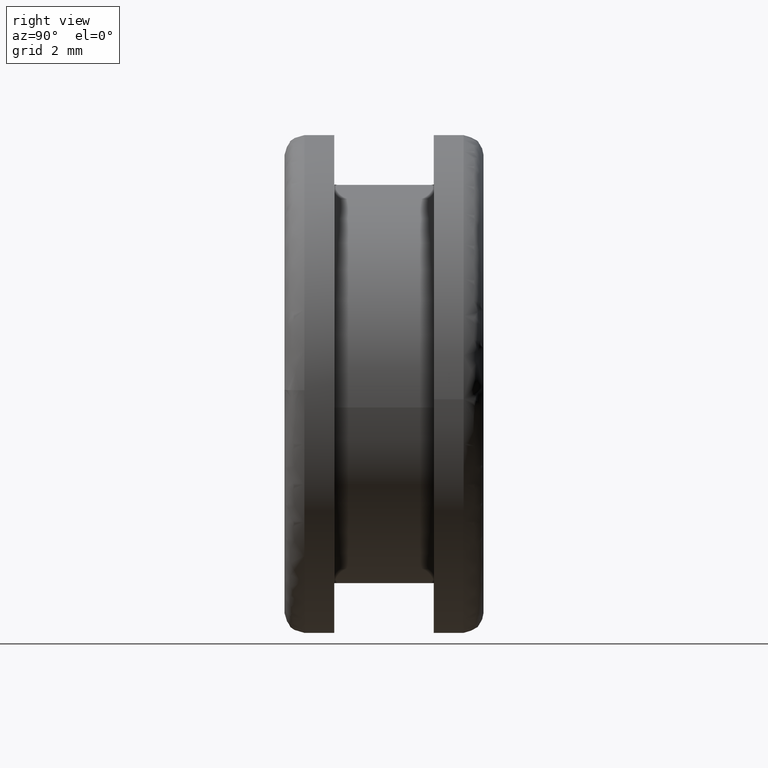
[diagram: clean part render]
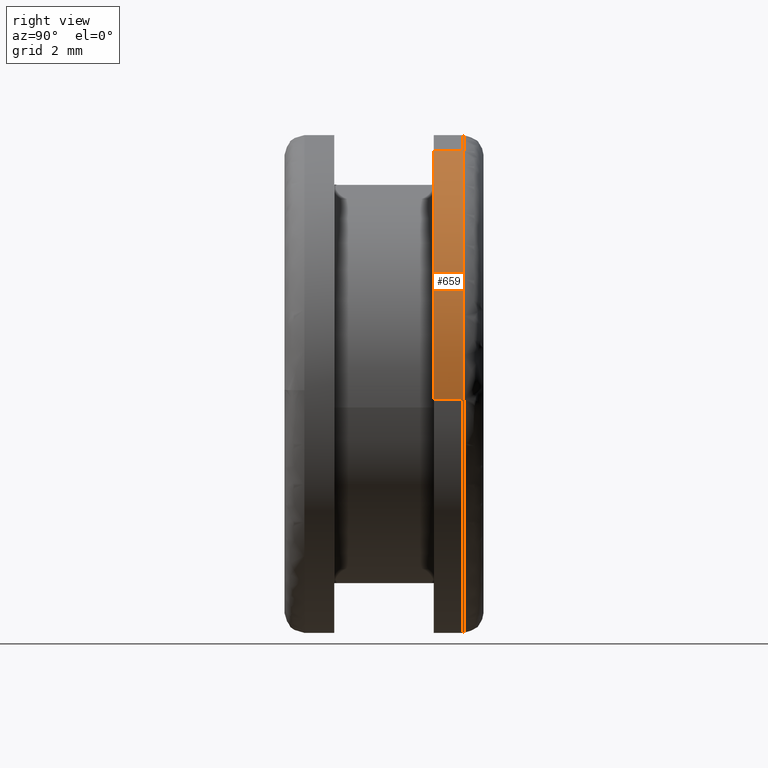
[diagram: same view with one face highlighted and labeled with its STEP entity id]
A machine part, right view. The second image highlights one B-rep face of the part: STEP entity #659.
In plain terms, the highlighted face is a freeform B-spline surface patch.
Its self-contained STEP definition (entity closure, byte-faithful):
#472=CARTESIAN_POINT('',(2.637130652825845,4.499999999999998,7.021078401492652));
#473=VERTEX_POINT('',#472);
#489=CARTESIAN_POINT('',(2.637130704092848,5.400000000000000,7.021078382236700));
#490=VERTEX_POINT('',#489);
#491=CARTESIAN_POINT('',(2.637130704092848,5.400000000000000,7.021078382236700));
#492=CARTESIAN_POINT('',(2.637130652825845,4.499999999999998,7.021078401492652));
#493=QUASI_UNIFORM_CURVE('',1,(#491,#492),.UNSPECIFIED.,.F.,.U.);
#494=EDGE_CURVE('',#490,#473,#493,.T.);
#556=CARTESIAN_POINT('',(7.486011298833336,5.400000000000000,-0.457858967056126));
#557=VERTEX_POINT('',#556);
#571=CARTESIAN_POINT('',(7.486011302712274,4.500000000000102,-0.457858903634632));
#572=VERTEX_POINT('',#571);
#573=CARTESIAN_POINT('',(7.486011298833336,5.400000000000000,-0.457858967056126));
#574=CARTESIAN_POINT('',(7.486011302712274,4.500000000000102,-0.457858903634632));
#575=QUASI_UNIFORM_CURVE('',1,(#573,#574),.UNSPECIFIED.,.F.,.U.);
#576=EDGE_CURVE('',#557,#572,#575,.T.);
#611=CARTESIAN_POINT('',(7.486010988164000,5.422500000010266,-0.457864046511423));
#612=CARTESIAN_POINT('',(7.824279171520059,5.422500000010266,5.072771863522993));
#613=CARTESIAN_POINT('',(2.637134807936786,5.422500000010266,7.021076840824930));
#614=CARTESIAN_POINT('',(7.486010988164000,4.476937499999742,-0.457864046511423));
#615=CARTESIAN_POINT('',(7.824279171520059,4.476937499999743,5.072771863522993));
#616=CARTESIAN_POINT('',(2.637134807936786,4.476937499999742,7.021076840824930));
#624=(BOUNDED_SURFACE()B_SPLINE_SURFACE(2,1,((#611,#614),(#612,#615),(#613,#616)),.UNSPECIFIED.,.F.,.F.,.U.)B_SPLINE_SURFACE_WITH_KNOTS((3,3),(2,2),(0.0,9.873365429149846),(0.0,1.0),.UNSPECIFIED.)GEOMETRIC_REPRESENTATION_ITEM()RATIONAL_B_SPLINE_SURFACE(((1.0,1.0),(0.765685424949238,0.765685424949238),(0.906274169979695,0.906274169979695)))REPRESENTATION_ITEM('')SURFACE());
#625=CARTESIAN_POINT('',(7.486011302712274,4.500000000000102,-0.457858903634633));
#626=CARTESIAN_POINT('',(7.500000000000000,4.500000000000000,-0.229143146091092));
#627=CARTESIAN_POINT('',(7.500000000000000,4.500000000000000,-1.928755E-016));
#628=CARTESIAN_POINT('',(7.499999999999999,4.500000000000000,5.194575251579957));
#629=CARTESIAN_POINT('',(2.637130652825845,4.499999999999998,7.021078401492652));
#637=(BOUNDED_CURVE()B_SPLINE_CURVE(2,(#625,#626,#627,#628,#629),.UNSPECIFIED.,.F.,.U.)B_SPLINE_CURVE_WITH_KNOTS((3,2,3),(0.239333080781329,0.250000000000000,0.440284264374492),.UNSPECIFIED.)CURVE()GEOMETRIC_REPRESENTATION_ITEM()RATIONAL_B_SPLINE_CURVE((0.976072295725749,0.987502926780882,1.0,0.777068117271220,0.893499669027772))REPRESENTATION_ITEM(''));
#638=EDGE_CURVE('',#572,#473,#637,.T.);
#639=ORIENTED_EDGE('',*,*,#638,.F.);
#640=ORIENTED_EDGE('',*,*,#576,.F.);
#641=CARTESIAN_POINT('',(7.486011298833336,5.400000000000000,-0.457858967056127));
#642=CARTESIAN_POINT('',(7.500000000000001,5.400000000000000,-0.229143177890749));
#643=CARTESIAN_POINT('',(7.500000000000000,5.400000000000000,-1.928755E-016));
#644=CARTESIAN_POINT('',(7.500000000000001,5.400000000000000,5.194575211062564));
#645=CARTESIAN_POINT('',(2.637130704092848,5.400000000000000,7.021078382236701));
#653=(BOUNDED_CURVE()B_SPLINE_CURVE(2,(#641,#642,#643,#644,#645),.UNSPECIFIED.,.F.,.U.)B_SPLINE_CURVE_WITH_KNOTS((3,2,3),(0.239333079319513,0.250000000000000,0.440284263221162),.UNSPECIFIED.)CURVE()GEOMETRIC_REPRESENTATION_ITEM()RATIONAL_B_SPLINE_CURVE((0.976072292592794,0.987502925068257,1.0,0.777068118622430,0.893499667616368))REPRESENTATION_ITEM(''));
#654=EDGE_CURVE('',#557,#490,#653,.T.);
#655=ORIENTED_EDGE('',*,*,#654,.T.);
#656=ORIENTED_EDGE('',*,*,#494,.T.);
#657=EDGE_LOOP('',(#639,#640,#655,#656));
#658=FACE_OUTER_BOUND('',#657,.T.);
#659=ADVANCED_FACE('',(#658),#624,.T.);